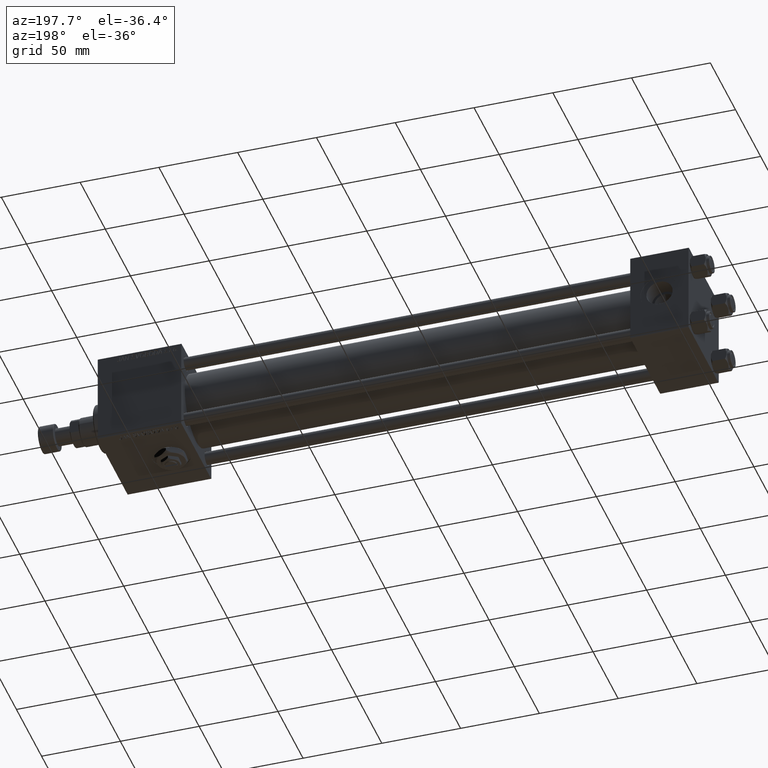
[diagram: clean part render]
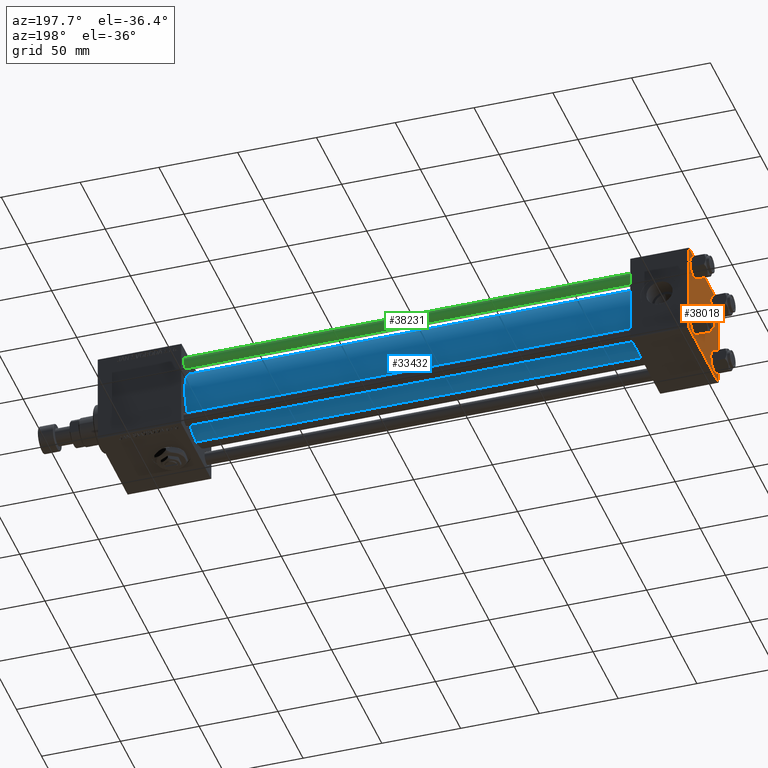
[diagram: same view with three faces highlighted in distinct colors, each labeled with its STEP entity id]
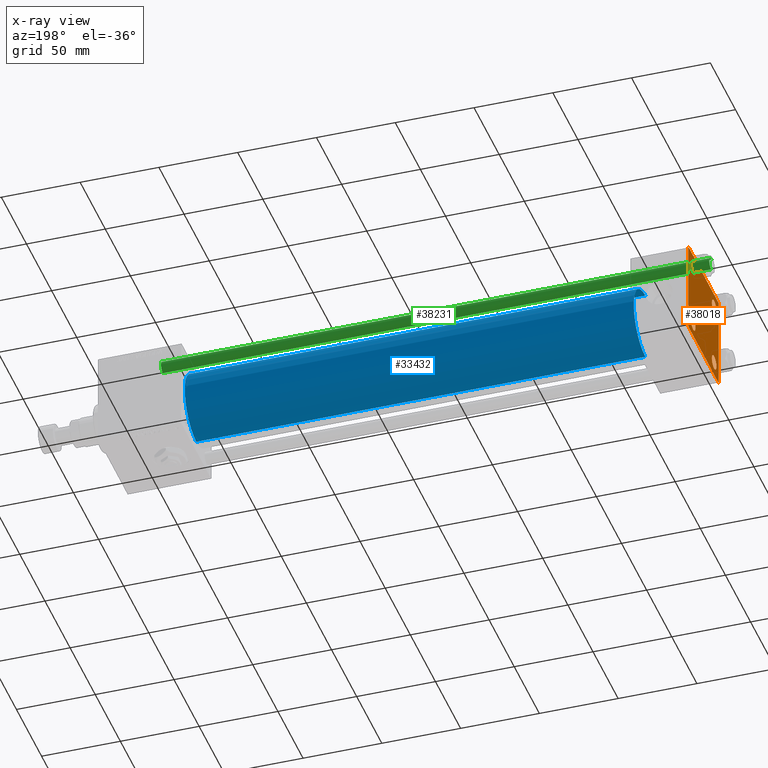
[diagram: x-ray of the same camera — body ghosted, the three highlighted faces saturated]
A machine part, auxiliary view with three faces highlighted in distinct colors.
The next image is the same camera in x-ray (body ghosted, the three faces saturated) — at least one of them is partly hidden behind the body in this view.
Their STEP definitions:

[orange] entity #38018 — the highlighted planar face has unit normal (-1, 0, 0).
#869 = VERTEX_POINT ( 'NONE', #27916 ) ;
#893 = DIRECTION ( 'NONE',  ( 0.000000000000000000, -1.000000000000000000, -1.156482317317871725E-16 ) ) ;
#1404 = VERTEX_POINT ( 'NONE', #37671 ) ;
#1732 = CARTESIAN_POINT ( 'NONE',  ( 0.000000000000000000, 29.74999999999957723, -29.75000000000040501 ) ) ;
#1938 = DIRECTION ( 'NONE',  ( 0.000000000000000000, -0.7071067811865474617, 0.7071067811865474617 ) ) ;
#2331 = VERTEX_POINT ( 'NONE', #49325 ) ;
#2867 = DIRECTION ( 'NONE',  ( -1.000000000000000000, 0.000000000000000000, -0.000000000000000000 ) ) ;
#3126 = CARTESIAN_POINT ( 'NONE',  ( 0.000000000000000000, 0.000000000000000000, 0.000000000000000000 ) ) ;
#3177 = EDGE_CURVE ( 'NONE', #29886, #33396, #41326, .T. ) ;
#3274 = ORIENTED_EDGE ( 'NONE', *, *, #15203, .T. ) ;
#3453 = VECTOR ( 'NONE', #9173, 1000.000000000000000 ) ;
#4270 = CARTESIAN_POINT ( 'NONE',  ( 0.000000000000000000, 20.84999999999999787, -20.85000000000000142 ) ) ;
#4345 = CARTESIAN_POINT ( 'NONE',  ( 0.000000000000000000, -20.84999999999999076, -25.35000000000002274 ) ) ;
#5220 = CARTESIAN_POINT ( 'NONE',  ( 0.000000000000000000, -29.50000000000000000, -30.00000000000000711 ) ) ;
#5533 = ORIENTED_EDGE ( 'NONE', *, *, #40368, .T. ) ;
#5988 = DIRECTION ( 'NONE',  ( -0.000000000000000000, -0.7071067811865574537, -0.7071067811865376918 ) ) ;
#6037 = CIRCLE ( 'NONE', #35755, 4.500000000000017764 ) ;
#6513 = DIRECTION ( 'NONE',  ( 0.000000000000000000, 0.000000000000000000, 1.000000000000000000 ) ) ;
#9173 = DIRECTION ( 'NONE',  ( 0.000000000000000000, 0.000000000000000000, -1.000000000000000000 ) ) ;
#9279 = CARTESIAN_POINT ( 'NONE',  ( 0.000000000000000000, 20.84999999999999787, -16.34999999999998366 ) ) ;
#9439 = CARTESIAN_POINT ( 'NONE',  ( 0.000000000000000000, -30.00000000000000000, 29.99999999999999289 ) ) ;
#9521 = CIRCLE ( 'NONE', #39251, 4.500000000000017764 ) ;
#10836 = DIRECTION ( 'NONE',  ( 0.000000000000000000, 0.000000000000000000, 1.000000000000000000 ) ) ;
#11060 = AXIS2_PLACEMENT_3D ( 'NONE', #3126, #2867, #19099 ) ;
#11625 = DIRECTION ( 'NONE',  ( 1.000000000000000000, -0.000000000000000000, 0.000000000000000000 ) ) ;
#11735 = EDGE_CURVE ( 'NONE', #18416, #50639, #38128, .T. ) ;
#12188 = CIRCLE ( 'NONE', #27423, 4.500000000000017764 ) ;
#12343 = VERTEX_POINT ( 'NONE', #21768 ) ;
#12641 = DIRECTION ( 'NONE',  ( 1.000000000000000000, -0.000000000000000000, 0.000000000000000000 ) ) ;
#12877 = VERTEX_POINT ( 'NONE', #18130 ) ;
#12880 = CARTESIAN_POINT ( 'NONE',  ( 0.000000000000000000, 29.99999999999999289, 30.00000000000000000 ) ) ;
#13501 = AXIS2_PLACEMENT_3D ( 'NONE', #36293, #12641, #19826 ) ;
#13760 = EDGE_CURVE ( 'NONE', #28125, #18416, #21212, .T. ) ;
#13961 = LINE ( 'NONE', #9439, #3453 ) ;
#14010 = DIRECTION ( 'NONE',  ( -0.000000000000000000, 0.7071067811865474617, 0.7071067811865474617 ) ) ;
#14197 = VERTEX_POINT ( 'NONE', #4345 ) ;
#14285 = EDGE_LOOP ( 'NONE', ( #37679, #5533 ) ) ;
#14993 = DIRECTION ( 'NONE',  ( 0.000000000000000000, 0.000000000000000000, 1.000000000000000000 ) ) ;
#15159 = CIRCLE ( 'NONE', #13501, 4.500000000000017764 ) ;
#15163 = VECTOR ( 'NONE', #26460, 1000.000000000000000 ) ;
#15203 = EDGE_CURVE ( 'NONE', #12877, #1404, #42170, .T. ) ;
#16193 = DIRECTION ( 'NONE',  ( 0.000000000000000000, -1.000000000000000000, -1.156482317317871725E-16 ) ) ;
#16559 = ORIENTED_EDGE ( 'NONE', *, *, #11735, .T. ) ;
#16614 = CARTESIAN_POINT ( 'NONE',  ( 0.000000000000000000, 29.49999999999997868, -30.00000000000000000 ) ) ;
#16769 = DIRECTION ( 'NONE',  ( 1.000000000000000000, -0.000000000000000000, 0.000000000000000000 ) ) ;
#16770 = VECTOR ( 'NONE', #16193, 1000.000000000000000 ) ;
#17272 = LINE ( 'NONE', #25755, #24852 ) ;
#17405 = VERTEX_POINT ( 'NONE', #24064 ) ;
#17725 = EDGE_CURVE ( 'NONE', #2331, #23639, #32206, .T. ) ;
#18094 = EDGE_LOOP ( 'NONE', ( #39835, #25252 ) ) ;
#18130 = CARTESIAN_POINT ( 'NONE',  ( 0.000000000000000000, 29.99999999999999289, 29.50000000000000000 ) ) ;
#18243 = DIRECTION ( 'NONE',  ( 1.000000000000000000, -0.000000000000000000, 0.000000000000000000 ) ) ;
#18416 = VERTEX_POINT ( 'NONE', #5220 ) ;
#18837 = FACE_BOUND ( 'NONE', #23285, .T. ) ;
#18985 = CARTESIAN_POINT ( 'NONE',  ( 0.000000000000000000, 20.84999999999999787, 20.85000000000000142 ) ) ;
#19028 = CARTESIAN_POINT ( 'NONE',  ( -0.000000000000000000, -29.74999999999999645, 29.74999999999999645 ) ) ;
#19099 = DIRECTION ( 'NONE',  ( -0.000000000000000000, 0.000000000000000000, 1.000000000000000000 ) ) ;
#19133 = ORIENTED_EDGE ( 'NONE', *, *, #38902, .T. ) ;
#19442 = EDGE_CURVE ( 'NONE', #17405, #27006, #15159, .T. ) ;
#19571 = EDGE_LOOP ( 'NONE', ( #47805, #43827 ) ) ;
#19703 = ORIENTED_EDGE ( 'NONE', *, *, #46181, .T. ) ;
#19826 = DIRECTION ( 'NONE',  ( 0.000000000000000000, 0.000000000000000000, 1.000000000000000000 ) ) ;
#19960 = VECTOR ( 'NONE', #893, 1000.000000000000000 ) ;
#20700 = ORIENTED_EDGE ( 'NONE', *, *, #3177, .F. ) ;
#21212 = LINE ( 'NONE', #29440, #16770 ) ;
#21750 = ORIENTED_EDGE ( 'NONE', *, *, #39322, .F. ) ;
#21768 = CARTESIAN_POINT ( 'NONE',  ( 0.000000000000000000, -20.84999999999999076, 25.35000000000002274 ) ) ;
#21978 = ORIENTED_EDGE ( 'NONE', *, *, #13760, .T. ) ;
#21980 = DIRECTION ( 'NONE',  ( 1.000000000000000000, -0.000000000000000000, 0.000000000000000000 ) ) ;
#22447 = CIRCLE ( 'NONE', #47126, 4.500000000000017764 ) ;
#22655 = EDGE_CURVE ( 'NONE', #1404, #28125, #42432, .T. ) ;
#23069 = FACE_OUTER_BOUND ( 'NONE', #48075, .T. ) ;
#23285 = EDGE_LOOP ( 'NONE', ( #19703, #19133 ) ) ;
#23337 = FACE_BOUND ( 'NONE', #14285, .T. ) ;
#23577 = CARTESIAN_POINT ( 'NONE',  ( 0.000000000000000000, -20.84999999999999076, -20.85000000000000497 ) ) ;
#23609 = CARTESIAN_POINT ( 'NONE',  ( 0.000000000000000000, -20.84999999999999076, -20.85000000000000497 ) ) ;
#23639 = VERTEX_POINT ( 'NONE', #9279 ) ;
#23904 = CARTESIAN_POINT ( 'NONE',  ( 0.000000000000000000, -20.84999999999999076, -16.34999999999998721 ) ) ;
#24064 = CARTESIAN_POINT ( 'NONE',  ( 0.000000000000000000, 20.84999999999999787, 25.35000000000001918 ) ) ;
#24182 = DIRECTION ( 'NONE',  ( 1.000000000000000000, -0.000000000000000000, 0.000000000000000000 ) ) ;
#24496 = CARTESIAN_POINT ( 'NONE',  ( 0.000000000000000000, -29.49999999999998579, 29.99999999999999289 ) ) ;
#24852 = VECTOR ( 'NONE', #33740, 1000.000000000000114 ) ;
#25252 = ORIENTED_EDGE ( 'NONE', *, *, #17725, .T. ) ;
#25697 = DIRECTION ( 'NONE',  ( 0.000000000000000000, 0.000000000000000000, 1.000000000000000000 ) ) ;
#25755 = CARTESIAN_POINT ( 'NONE',  ( 0.000000000000000000, 29.74999999999999645, 29.74999999999999645 ) ) ;
#26199 = CARTESIAN_POINT ( 'NONE',  ( 0.000000000000000000, 29.99999999999999289, 30.00000000000000000 ) ) ;
#26460 = DIRECTION ( 'NONE',  ( 0.000000000000000000, 0.000000000000000000, -1.000000000000000000 ) ) ;
#27006 = VERTEX_POINT ( 'NONE', #34957 ) ;
#27423 = AXIS2_PLACEMENT_3D ( 'NONE', #50201, #21980, #25697 ) ;
#27601 = DIRECTION ( 'NONE',  ( 1.000000000000000000, -0.000000000000000000, 0.000000000000000000 ) ) ;
#27916 = CARTESIAN_POINT ( 'NONE',  ( 0.000000000000000000, -20.84999999999999076, 16.34999999999998721 ) ) ;
#28074 = AXIS2_PLACEMENT_3D ( 'NONE', #23609, #27601, #43851 ) ;
#28125 = VERTEX_POINT ( 'NONE', #16614 ) ;
#28584 = EDGE_CURVE ( 'NONE', #52429, #33396, #29947, .T. ) ;
#29440 = CARTESIAN_POINT ( 'NONE',  ( 0.000000000000000000, 29.99999999999999289, -30.00000000000000000 ) ) ;
#29886 = VERTEX_POINT ( 'NONE', #50095 ) ;
#29947 = LINE ( 'NONE', #19028, #37177 ) ;
#30303 = VECTOR ( 'NONE', #1938, 1000.000000000000114 ) ;
#32206 = CIRCLE ( 'NONE', #36453, 4.500000000000017764 ) ;
#32959 = DIRECTION ( 'NONE',  ( 0.000000000000000000, 0.000000000000000000, 1.000000000000000000 ) ) ;
#33396 = VERTEX_POINT ( 'NONE', #24496 ) ;
#33740 = DIRECTION ( 'NONE',  ( 0.000000000000000000, 0.7071067811865474617, -0.7071067811865474617 ) ) ;
#34382 = ORIENTED_EDGE ( 'NONE', *, *, #22655, .T. ) ;
#34747 = EDGE_CURVE ( 'NONE', #23639, #2331, #51723, .T. ) ;
#34957 = CARTESIAN_POINT ( 'NONE',  ( 0.000000000000000000, 20.84999999999999787, 16.34999999999998366 ) ) ;
#34973 = CARTESIAN_POINT ( 'NONE',  ( 0.000000000000000000, -20.84999999999999076, 20.85000000000000497 ) ) ;
#35197 = DIRECTION ( 'NONE',  ( 1.000000000000000000, -0.000000000000000000, 0.000000000000000000 ) ) ;
#35311 = CARTESIAN_POINT ( 'NONE',  ( 0.000000000000000000, -30.00000000000000000, 29.49999999999999289 ) ) ;
#35755 = AXIS2_PLACEMENT_3D ( 'NONE', #18985, #35197, #14993 ) ;
#36293 = CARTESIAN_POINT ( 'NONE',  ( 0.000000000000000000, 20.84999999999999787, 20.85000000000000142 ) ) ;
#36453 = AXIS2_PLACEMENT_3D ( 'NONE', #4270, #16769, #41487 ) ;
#36952 = CARTESIAN_POINT ( 'NONE',  ( 0.000000000000000000, 20.84999999999999787, -20.85000000000000142 ) ) ;
#37177 = VECTOR ( 'NONE', #14010, 1000.000000000000114 ) ;
#37222 = VERTEX_POINT ( 'NONE', #23904 ) ;
#37671 = CARTESIAN_POINT ( 'NONE',  ( 0.000000000000000000, 29.99999999999999289, -29.50000000000000000 ) ) ;
#37679 = ORIENTED_EDGE ( 'NONE', *, *, #19442, .T. ) ;
#38018 = ADVANCED_FACE ( 'NONE', ( #52076, #18837, #43305, #23337, #23069 ), #39306, .T. ) ;
#38128 = LINE ( 'NONE', #47169, #30303 ) ;
#38902 = EDGE_CURVE ( 'NONE', #14197, #37222, #50215, .T. ) ;
#39251 = AXIS2_PLACEMENT_3D ( 'NONE', #23577, #11625, #10836 ) ;
#39306 = PLANE ( 'NONE',  #11060 ) ;
#39322 = EDGE_CURVE ( 'NONE', #52429, #50639, #13961, .T. ) ;
#39835 = ORIENTED_EDGE ( 'NONE', *, *, #34747, .T. ) ;
#40368 = EDGE_CURVE ( 'NONE', #27006, #17405, #6037, .T. ) ;
#41326 = LINE ( 'NONE', #12880, #19960 ) ;
#41487 = DIRECTION ( 'NONE',  ( 0.000000000000000000, 0.000000000000000000, 1.000000000000000000 ) ) ;
#41626 = VECTOR ( 'NONE', #5988, 999.9999999999998863 ) ;
#42170 = LINE ( 'NONE', #26199, #15163 ) ;
#42432 = LINE ( 'NONE', #1732, #41626 ) ;
#43305 = FACE_BOUND ( 'NONE', #18094, .T. ) ;
#43827 = ORIENTED_EDGE ( 'NONE', *, *, #48924, .T. ) ;
#43851 = DIRECTION ( 'NONE',  ( 0.000000000000000000, 0.000000000000000000, 1.000000000000000000 ) ) ;
#45162 = ORIENTED_EDGE ( 'NONE', *, *, #48106, .T. ) ;
#45261 = ORIENTED_EDGE ( 'NONE', *, *, #28584, .T. ) ;
#45500 = CARTESIAN_POINT ( 'NONE',  ( 0.000000000000000000, -30.00000000000000000, -29.50000000000001776 ) ) ;
#46181 = EDGE_CURVE ( 'NONE', #37222, #14197, #9521, .T. ) ;
#47126 = AXIS2_PLACEMENT_3D ( 'NONE', #34973, #18243, #6513 ) ;
#47169 = CARTESIAN_POINT ( 'NONE',  ( 0.000000000000000000, -29.75000000000001066, -29.75000000000001066 ) ) ;
#47805 = ORIENTED_EDGE ( 'NONE', *, *, #51957, .T. ) ;
#48075 = EDGE_LOOP ( 'NONE', ( #3274, #34382, #21978, #16559, #21750, #45261, #20700, #45162 ) ) ;
#48106 = EDGE_CURVE ( 'NONE', #29886, #12877, #17272, .T. ) ;
#48924 = EDGE_CURVE ( 'NONE', #869, #12343, #12188, .T. ) ;
#49325 = CARTESIAN_POINT ( 'NONE',  ( 0.000000000000000000, 20.84999999999999787, -25.35000000000001918 ) ) ;
#50095 = CARTESIAN_POINT ( 'NONE',  ( 0.000000000000000000, 29.49999999999999289, 30.00000000000000000 ) ) ;
#50201 = CARTESIAN_POINT ( 'NONE',  ( 0.000000000000000000, -20.84999999999999076, 20.85000000000000497 ) ) ;
#50215 = CIRCLE ( 'NONE', #28074, 4.500000000000017764 ) ;
#50639 = VERTEX_POINT ( 'NONE', #45500 ) ;
#50894 = AXIS2_PLACEMENT_3D ( 'NONE', #36952, #24182, #32959 ) ;
#51723 = CIRCLE ( 'NONE', #50894, 4.500000000000017764 ) ;
#51957 = EDGE_CURVE ( 'NONE', #12343, #869, #22447, .T. ) ;
#52076 = FACE_BOUND ( 'NONE', #19571, .T. ) ;
#52429 = VERTEX_POINT ( 'NONE', #35311 ) ;

[blue] entity #33432 — the highlighted cylindrical surface (partial cylindrical patch) has radius 23 mm, axis along (-1, -0, -0).
#2084 = ORIENTED_EDGE ( 'NONE', *, *, #23508, .T. ) ;
#3420 = VECTOR ( 'NONE', #27992, 1000.000000000000000 ) ;
#5693 = EDGE_CURVE ( 'NONE', #16547, #52030, #43687, .T. ) ;
#6975 = CARTESIAN_POINT ( 'NONE',  ( 321.9999999999999432, -2.602085213965210642E-15, 0.000000000000000000 ) ) ;
#8498 = CARTESIAN_POINT ( 'NONE',  ( 321.9999999999999432, 2.146024240737016609E-16, -23.00000000000000000 ) ) ;
#8871 = AXIS2_PLACEMENT_3D ( 'NONE', #43121, #22895, #23690 ) ;
#11227 = EDGE_CURVE ( 'NONE', #34737, #11931, #22624, .T. ) ;
#11931 = VERTEX_POINT ( 'NONE', #51679 ) ;
#11960 = DIRECTION ( 'NONE',  ( -1.000000000000000000, -0.000000000000000000, -0.000000000000000000 ) ) ;
#12542 = DIRECTION ( 'NONE',  ( 0.000000000000000000, 0.000000000000000000, 1.000000000000000000 ) ) ;
#14335 = AXIS2_PLACEMENT_3D ( 'NONE', #19998, #44223, #12542 ) ;
#14672 = ORIENTED_EDGE ( 'NONE', *, *, #5693, .T. ) ;
#16149 = VECTOR ( 'NONE', #11960, 1000.000000000000000 ) ;
#16547 = VERTEX_POINT ( 'NONE', #47440 ) ;
#19998 = CARTESIAN_POINT ( 'NONE',  ( 321.9999999999999432, -2.602085213965210642E-15, 0.000000000000000000 ) ) ;
#20519 = FACE_OUTER_BOUND ( 'NONE', #50498, .T. ) ;
#20792 = CARTESIAN_POINT ( 'NONE',  ( 36.99999999999997868, -2.602085213965210642E-15, 23.00000000000000000 ) ) ;
#22624 = CIRCLE ( 'NONE', #26876, 23.00000000000000000 ) ;
#22895 = DIRECTION ( 'NONE',  ( 1.000000000000000000, -0.000000000000000000, 0.000000000000000000 ) ) ;
#23508 = EDGE_CURVE ( 'NONE', #34737, #16547, #44940, .T. ) ;
#23690 = DIRECTION ( 'NONE',  ( 0.000000000000000000, 0.000000000000000000, 1.000000000000000000 ) ) ;
#23974 = DIRECTION ( 'NONE',  ( 0.000000000000000000, 0.000000000000000000, -1.000000000000000000 ) ) ;
#26876 = AXIS2_PLACEMENT_3D ( 'NONE', #6975, #48203, #23974 ) ;
#27719 = LINE ( 'NONE', #48222, #3420 ) ;
#27992 = DIRECTION ( 'NONE',  ( -1.000000000000000000, -0.000000000000000000, -0.000000000000000000 ) ) ;
#28227 = CYLINDRICAL_SURFACE ( 'NONE', #14335, 23.00000000000000000 ) ;
#28707 = CARTESIAN_POINT ( 'NONE',  ( 321.9999999999999432, 2.146024240737016609E-16, -23.00000000000000000 ) ) ;
#29180 = ORIENTED_EDGE ( 'NONE', *, *, #11227, .F. ) ;
#32946 = ORIENTED_EDGE ( 'NONE', *, *, #38318, .F. ) ;
#33432 = ADVANCED_FACE ( 'NONE', ( #20519 ), #28227, .T. ) ;
#34737 = VERTEX_POINT ( 'NONE', #28707 ) ;
#38318 = EDGE_CURVE ( 'NONE', #11931, #52030, #27719, .T. ) ;
#43121 = CARTESIAN_POINT ( 'NONE',  ( 36.99999999999997868, -2.602085213965210642E-15, 0.000000000000000000 ) ) ;
#43687 = CIRCLE ( 'NONE', #8871, 23.00000000000000000 ) ;
#44223 = DIRECTION ( 'NONE',  ( -1.000000000000000000, -0.000000000000000000, -0.000000000000000000 ) ) ;
#44940 = LINE ( 'NONE', #8498, #16149 ) ;
#47440 = CARTESIAN_POINT ( 'NONE',  ( 36.99999999999997868, 2.146024240737016609E-16, -23.00000000000000000 ) ) ;
#48203 = DIRECTION ( 'NONE',  ( 1.000000000000000000, 0.000000000000000000, 0.000000000000000000 ) ) ;
#48222 = CARTESIAN_POINT ( 'NONE',  ( 321.9999999999999432, -2.602085213965210642E-15, 23.00000000000000000 ) ) ;
#50498 = EDGE_LOOP ( 'NONE', ( #29180, #2084, #14672, #32946 ) ) ;
#51679 = CARTESIAN_POINT ( 'NONE',  ( 321.9999999999999432, -2.602085213965210642E-15, 23.00000000000000000 ) ) ;
#52030 = VERTEX_POINT ( 'NONE', #20792 ) ;

[green] entity #38231 — the highlighted cylindrical surface (edge-blend (fillet) strip) has radius 4 mm, axis along (-1, 0, 0).
#273 = EDGE_CURVE ( 'NONE', #32451, #4126, #30002, .T. ) ;
#735 = CARTESIAN_POINT ( 'NONE',  ( -4.000000000000000000, 0.000000000000000000, 349.0000000000000000 ) ) ;
#1988 = ORIENTED_EDGE ( 'NONE', *, *, #19464, .T. ) ;
#4126 = VERTEX_POINT ( 'NONE', #22937 ) ;
#5226 = FACE_OUTER_BOUND ( 'NONE', #51645, .T. ) ;
#5644 = CARTESIAN_POINT ( 'NONE',  ( 4.000000000000000000, 4.898587196589412829E-16, 0.4999999999999449329 ) ) ;
#11456 = VERTEX_POINT ( 'NONE', #17003 ) ;
#12107 = CARTESIAN_POINT ( 'NONE',  ( 0.000000000000000000, 0.000000000000000000, 348.4999999999999432 ) ) ;
#12154 = CARTESIAN_POINT ( 'NONE',  ( 0.000000000000000000, 0.000000000000000000, 0.4999999999999449329 ) ) ;
#13482 = DIRECTION ( 'NONE',  ( -1.000000000000000000, 0.000000000000000000, 0.000000000000000000 ) ) ;
#13699 = EDGE_CURVE ( 'NONE', #11456, #4126, #24936, .T. ) ;
#13896 = AXIS2_PLACEMENT_3D ( 'NONE', #12154, #28361, #24363 ) ;
#15832 = DIRECTION ( 'NONE',  ( 0.000000000000000000, 0.000000000000000000, -1.000000000000000000 ) ) ;
#16737 = DIRECTION ( 'NONE',  ( -0.000000000000000000, -0.000000000000000000, -1.000000000000000000 ) ) ;
#16978 = DIRECTION ( 'NONE',  ( -0.000000000000000000, -0.000000000000000000, -1.000000000000000000 ) ) ;
#17003 = CARTESIAN_POINT ( 'NONE',  ( -4.000000000000000000, 0.000000000000000000, 348.4999999999999432 ) ) ;
#18866 = CARTESIAN_POINT ( 'NONE',  ( 4.000000000000000000, 4.898587196589412829E-16, 348.4999999999999432 ) ) ;
#19464 = EDGE_CURVE ( 'NONE', #11456, #25793, #32156, .T. ) ;
#20077 = DIRECTION ( 'NONE',  ( 1.000000000000000000, 0.000000000000000000, 0.000000000000000000 ) ) ;
#21043 = ORIENTED_EDGE ( 'NONE', *, *, #43476, .T. ) ;
#22937 = CARTESIAN_POINT ( 'NONE',  ( -4.000000000000000000, 0.000000000000000000, 0.4999999999999449329 ) ) ;
#22940 = DIRECTION ( 'NONE',  ( -0.000000000000000000, -0.000000000000000000, -1.000000000000000000 ) ) ;
#24363 = DIRECTION ( 'NONE',  ( 1.000000000000000000, 0.000000000000000000, 0.000000000000000000 ) ) ;
#24936 = LINE ( 'NONE', #735, #35415 ) ;
#25497 = AXIS2_PLACEMENT_3D ( 'NONE', #49667, #22940, #13482 ) ;
#25685 = VECTOR ( 'NONE', #16737, 1000.000000000000000 ) ;
#25793 = VERTEX_POINT ( 'NONE', #18866 ) ;
#28361 = DIRECTION ( 'NONE',  ( -0.000000000000000000, -0.000000000000000000, 1.000000000000000000 ) ) ;
#30002 = CIRCLE ( 'NONE', #13896, 4.000000000000000000 ) ;
#32156 = CIRCLE ( 'NONE', #40670, 4.000000000000000000 ) ;
#32451 = VERTEX_POINT ( 'NONE', #5644 ) ;
#35415 = VECTOR ( 'NONE', #16978, 1000.000000000000000 ) ;
#36943 = CARTESIAN_POINT ( 'NONE',  ( 4.000000000000000000, 4.898587196589412829E-16, 349.0000000000000000 ) ) ;
#37258 = ORIENTED_EDGE ( 'NONE', *, *, #273, .T. ) ;
#37934 = CYLINDRICAL_SURFACE ( 'NONE', #25497, 4.000000000000000000 ) ;
#38231 = ADVANCED_FACE ( 'NONE', ( #5226 ), #37934, .T. ) ;
#40670 = AXIS2_PLACEMENT_3D ( 'NONE', #12107, #15832, #20077 ) ;
#43476 = EDGE_CURVE ( 'NONE', #25793, #32451, #48143, .T. ) ;
#48143 = LINE ( 'NONE', #36943, #25685 ) ;
#49427 = ORIENTED_EDGE ( 'NONE', *, *, #13699, .F. ) ;
#49667 = CARTESIAN_POINT ( 'NONE',  ( 0.000000000000000000, 0.000000000000000000, 349.0000000000000000 ) ) ;
#51645 = EDGE_LOOP ( 'NONE', ( #1988, #21043, #37258, #49427 ) ) ;